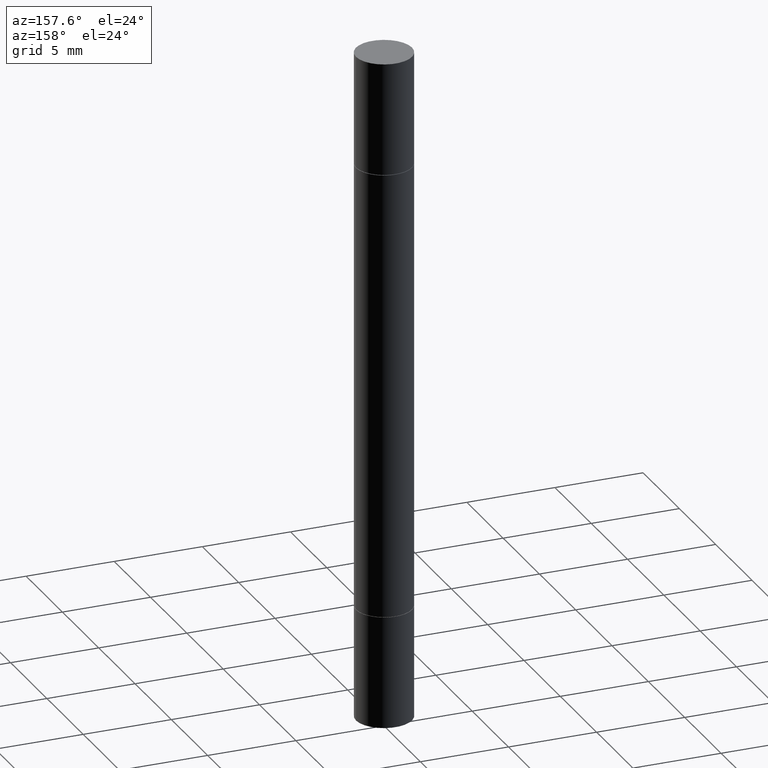
[diagram: clean part render]
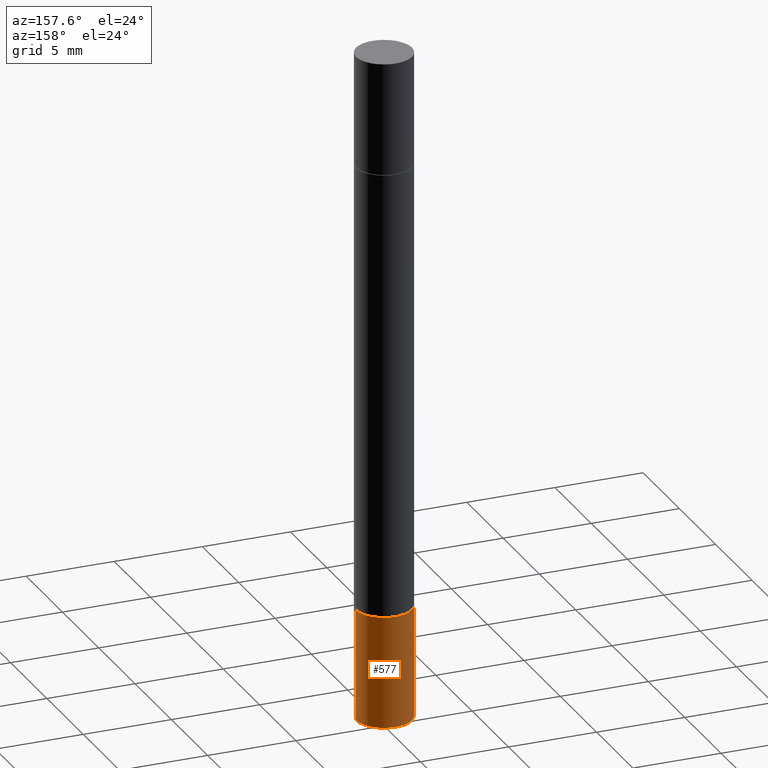
[diagram: same view with one face highlighted and labeled with its STEP entity id]
A machine part, auxiliary view. The second image highlights one B-rep face of the part: STEP entity #577.
In plain terms, the highlighted cylindrical surface (edge-blend (fillet) strip) has radius 1.5875 mm, axis along (-0, 0, 1).
Its self-contained STEP definition (entity closure, byte-faithful):
#5 = ORIENTED_EDGE ( 'NONE', *, *, #157, .T. ) ;
#9 = CARTESIAN_POINT ( 'NONE',  ( 0.06250000000000001388, -4.800786840909324141E-15, -1.250000000000000000 ) ) ;
#27 = VECTOR ( 'NONE', #264, 39.37007874015748143 ) ;
#67 = DIRECTION ( 'NONE',  ( 1.000000000000000000, -6.982962677686269077E-15, 0.000000000000000000 ) ) ;
#100 = CARTESIAN_POINT ( 'NONE',  ( 3.056836007731421306E-29, -4.364351673553932471E-15, -1.250000000000000000 ) ) ;
#103 = AXIS2_PLACEMENT_3D ( 'NONE', #413, #310, #495 ) ;
#107 = EDGE_CURVE ( 'NONE', #664, #448, #579, .T. ) ;
#109 = CARTESIAN_POINT ( 'NONE',  ( -0.06250000000000001388, -4.356697631059263102E-15, -1.500000000000000222 ) ) ;
#110 = EDGE_CURVE ( 'NONE', #672, #384, #284, .T. ) ;
#115 = DIRECTION ( 'NONE',  ( 1.000000000000000000, -6.982962677686261189E-15, 0.000000000000000000 ) ) ;
#146 = ORIENTED_EDGE ( 'NONE', *, *, #110, .T. ) ;
#147 = CYLINDRICAL_SURFACE ( 'NONE', #103, 0.06250000000000001388 ) ;
#157 = EDGE_CURVE ( 'NONE', #384, #448, #416, .T. ) ;
#214 = EDGE_CURVE ( 'NONE', #672, #664, #281, .T. ) ;
#244 = CARTESIAN_POINT ( 'NONE',  ( 0.06250000000000001388, -4.364351673553918173E-16, 3.047610484872460571E-30 ) ) ;
#264 = DIRECTION ( 'NONE',  ( -2.445468806185136877E-29, 3.491481338843145188E-15, 1.000000000000000000 ) ) ;
#281 = LINE ( 'NONE', #244, #318 ) ;
#284 = CIRCLE ( 'NONE', #514, 0.06250000000000001388 ) ;
#293 = EDGE_LOOP ( 'NONE', ( #146, #5, #637, #675 ) ) ;
#310 = DIRECTION ( 'NONE',  ( -2.445468806185136597E-29, 3.491481338843145583E-15, 1.000000000000000000 ) ) ;
#318 = VECTOR ( 'NONE', #402, 39.37007874015748143 ) ;
#327 = AXIS2_PLACEMENT_3D ( 'NONE', #100, #484, #67 ) ;
#331 = CARTESIAN_POINT ( 'NONE',  ( 3.668203209277704895E-29, -5.237222008264718177E-15, -1.500000000000000222 ) ) ;
#384 = VERTEX_POINT ( 'NONE', #109 ) ;
#402 = DIRECTION ( 'NONE',  ( -2.445468806185136877E-29, 3.491481338843145188E-15, 1.000000000000000000 ) ) ;
#413 = CARTESIAN_POINT ( 'NONE',  ( 0.000000000000000000, 0.000000000000000000, 0.000000000000000000 ) ) ;
#416 = LINE ( 'NONE', #634, #27 ) ;
#435 = CARTESIAN_POINT ( 'NONE',  ( 0.06250000000000001388, -5.673657175620109846E-15, -1.500000000000000222 ) ) ;
#448 = VERTEX_POINT ( 'NONE', #524 ) ;
#471 = FACE_OUTER_BOUND ( 'NONE', #293, .T. ) ;
#473 = DIRECTION ( 'NONE',  ( -2.445468806185136597E-29, 3.491481338843145583E-15, 1.000000000000000000 ) ) ;
#484 = DIRECTION ( 'NONE',  ( -2.445468806185136597E-29, 3.491481338843145583E-15, 1.000000000000000000 ) ) ;
#495 = DIRECTION ( 'NONE',  ( 1.000000000000000000, -6.982962677686267499E-15, 4.876176775795935793E-29 ) ) ;
#514 = AXIS2_PLACEMENT_3D ( 'NONE', #331, #473, #115 ) ;
#524 = CARTESIAN_POINT ( 'NONE',  ( -0.06250000000000001388, -4.356697631059263102E-15, -1.250000000000000000 ) ) ;
#577 = ADVANCED_FACE ( 'NONE', ( #471 ), #147, .T. ) ;
#579 = CIRCLE ( 'NONE', #327, 0.06250000000000001388 ) ;
#634 = CARTESIAN_POINT ( 'NONE',  ( -0.06250000000000001388, 4.440892098500627148E-16, -3.074334431409317165E-30 ) ) ;
#637 = ORIENTED_EDGE ( 'NONE', *, *, #107, .F. ) ;
#664 = VERTEX_POINT ( 'NONE', #9 ) ;
#672 = VERTEX_POINT ( 'NONE', #435 ) ;
#675 = ORIENTED_EDGE ( 'NONE', *, *, #214, .F. ) ;